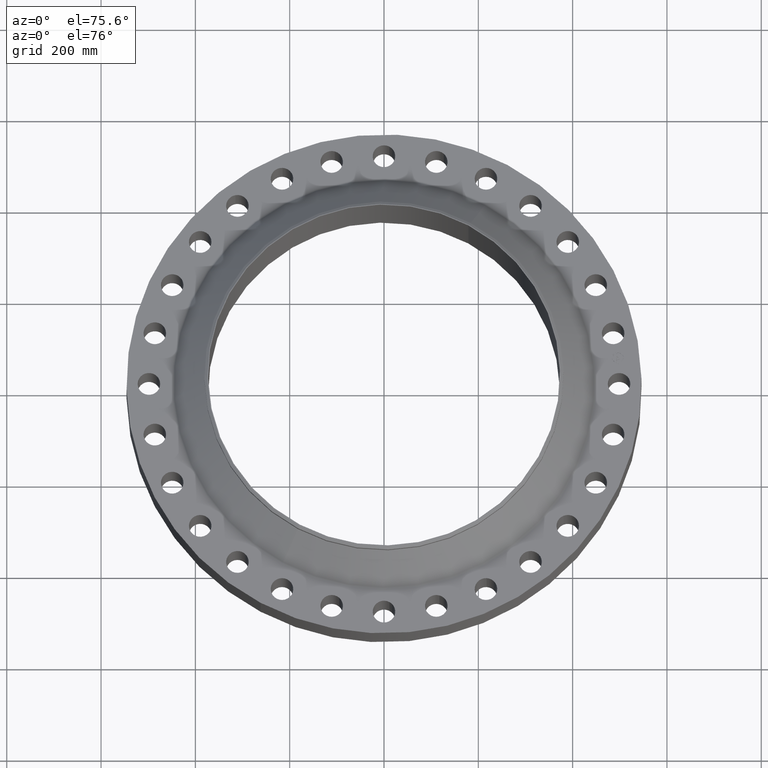
[diagram: clean part render]
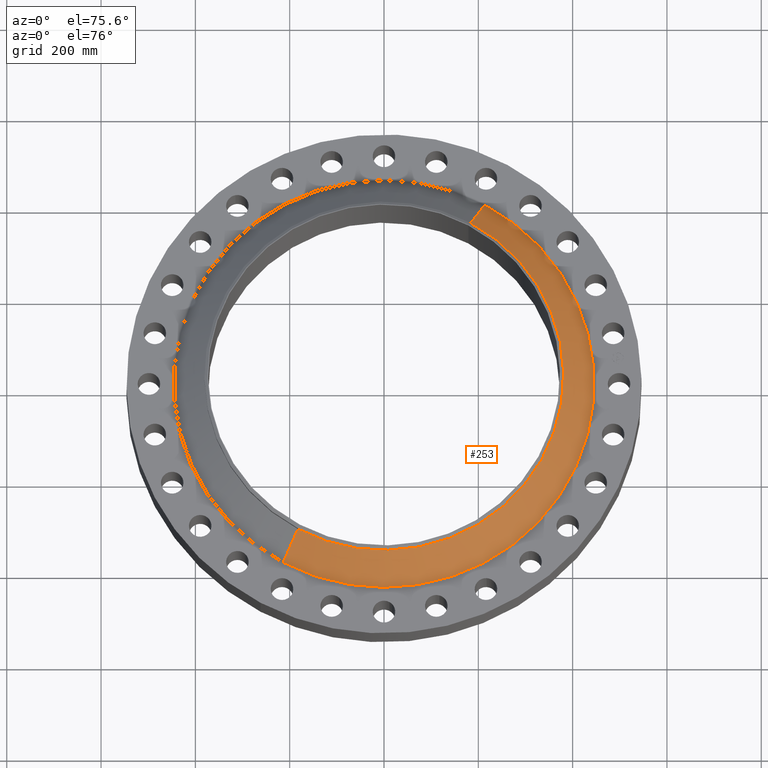
[diagram: same view with one face highlighted and labeled with its STEP entity id]
A machine part, auxiliary view. The second image highlights one B-rep face of the part: STEP entity #253.
In plain terms, the highlighted conical surface has half-angle 45.581 deg.
Its self-contained STEP definition (entity closure, byte-faithful):
#184=CARTESIAN_POINT('Vertex',(213.73904843,391.246703802,78.0146028909)) ;
#187=CARTESIAN_POINT('Axis2P3D Location',(0.,0.,78.0146028909)) ;
#191=CARTESIAN_POINT('Vertex',(-213.73904843,-391.246703802,78.0146028909)) ;
#223=CARTESIAN_POINT('Axis2P3D Location',(0.,0.,141.53721868)) ;
#228=CARTESIAN_POINT('Line Origine',(198.20008932,362.802829942,109.775910785)) ;
#232=CARTESIAN_POINT('Vertex',(182.661130209,334.358956082,141.53721868)) ;
#235=CARTESIAN_POINT('Axis2P3D Location',(0.,0.,141.53721868)) ;
#239=CARTESIAN_POINT('Vertex',(-182.661130209,-334.358956082,141.53721868)) ;
#242=CARTESIAN_POINT('Line Origine',(-198.20008932,-362.802829942,109.775910785)) ;
#188=DIRECTION('Axis2P3D Direction',(0.,0.,-1.)) ;
#224=DIRECTION('Axis2P3D Direction',(0.,0.,-1.)) ;
#225=DIRECTION('Axis2P3D XDirection',(0.479425538604,0.87758256189,0.)) ;
#229=DIRECTION('Vector Direction',(0.342422866449,0.626800852669,-0.699905187598)) ;
#236=DIRECTION('Axis2P3D Direction',(0.,0.,-1.)) ;
#243=DIRECTION('Vector Direction',(-0.342422866449,-0.626800852669,-0.699905187598)) ;
#189=AXIS2_PLACEMENT_3D('Circle Axis2P3D',#187,#188,$) ;
#226=AXIS2_PLACEMENT_3D('Cone Axis2P3D',#223,#224,#225) ;
#237=AXIS2_PLACEMENT_3D('Circle Axis2P3D',#235,#236,$) ;
#248=ORIENTED_EDGE('',*,*,#193,.F.) ;
#249=ORIENTED_EDGE('',*,*,#234,.T.) ;
#250=ORIENTED_EDGE('',*,*,#241,.T.) ;
#251=ORIENTED_EDGE('',*,*,#246,.F.) ;
#230=VECTOR('Line Direction',#229,1.) ;
#244=VECTOR('Line Direction',#243,1.) ;
#253=ADVANCED_FACE('PartBody',(#252),#227,.T.) ;
#190=CIRCLE('generated circle',#189,445.823243068) ;
#238=CIRCLE('generated circle',#237,381.000000002) ;
#227=CONICAL_SURFACE('Cone',#226,381.000000002,0.795531585465) ;
#193=EDGE_CURVE('',#185,#192,#190,.T.) ;
#234=EDGE_CURVE('',#185,#233,#231,.F.) ;
#241=EDGE_CURVE('',#233,#240,#238,.T.) ;
#246=EDGE_CURVE('',#192,#240,#245,.F.) ;
#247=EDGE_LOOP('',(#248,#249,#250,#251)) ;
#252=FACE_OUTER_BOUND('',#247,.T.) ;
#231=LINE('Line',#228,#230) ;
#245=LINE('Line',#242,#244) ;
#185=VERTEX_POINT('',#184) ;
#192=VERTEX_POINT('',#191) ;
#233=VERTEX_POINT('',#232) ;
#240=VERTEX_POINT('',#239) ;